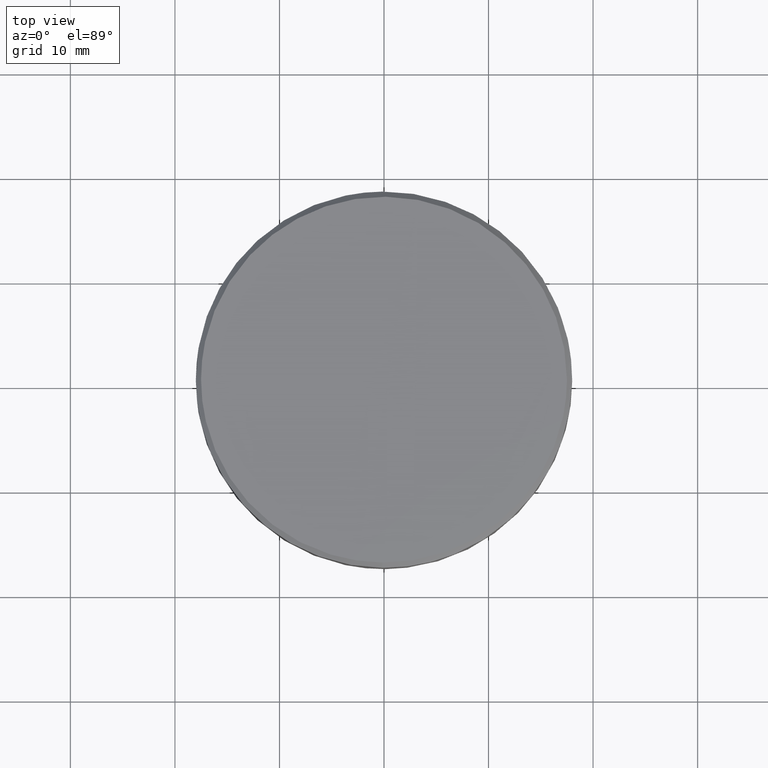
[diagram: clean part render]
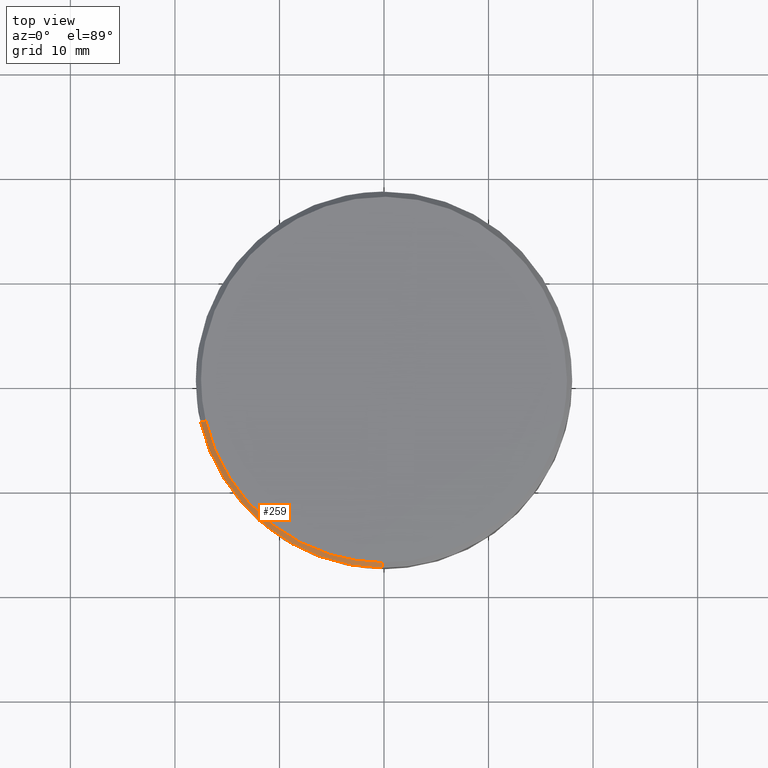
[diagram: same view with one face highlighted and labeled with its STEP entity id]
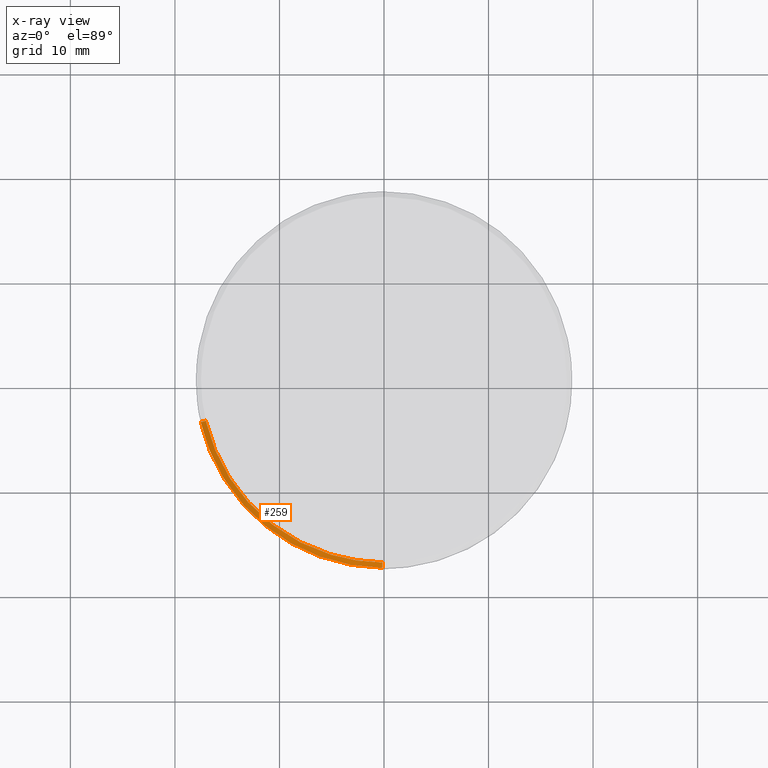
[diagram: x-ray of the same camera — body ghosted, the highlighted face saturated]
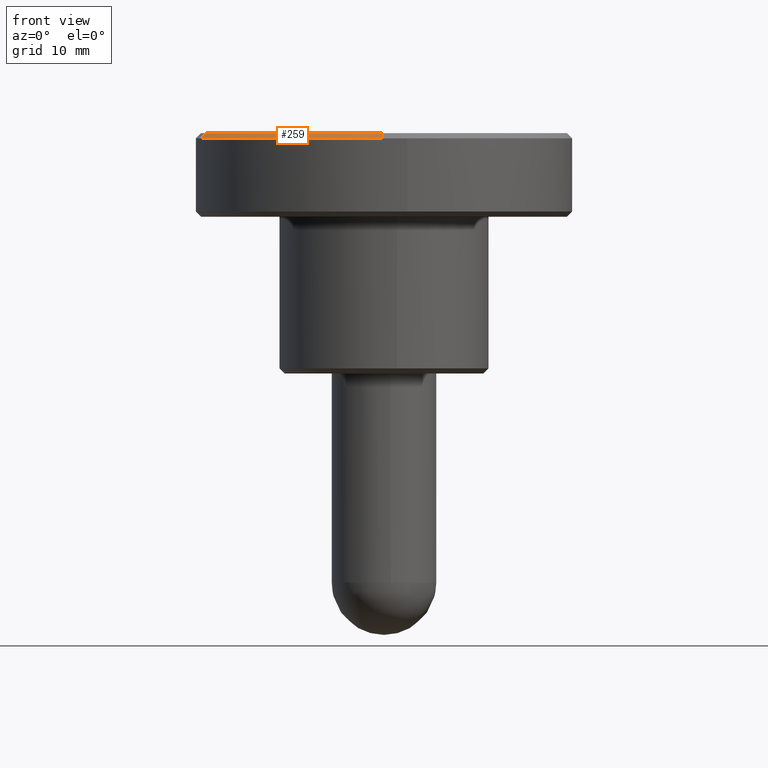
[diagram: same view with one face highlighted and labeled with its STEP entity id]
A machine part, top view. The second image highlights one B-rep face of the part: STEP entity #259.
The next image is the same camera in x-ray: the body ghosted, the highlighted face saturated — about 0% of this face is hidden behind the body in this view.
A second angle (front view) of the same face is appended — the face is thin or edge-on in the first view.
In plain terms, the highlighted face is a freeform B-spline surface patch.
Its self-contained STEP definition (entity closure, byte-faithful):
#70=CARTESIAN_POINT('',(-17.535926757211040,-4.060944811969350,22.499999999996358));
#71=VERTEX_POINT('',#70);
#87=CARTESIAN_POINT('',(-17.048817680619980,-3.948140789431212,22.999999999994571));
#88=VERTEX_POINT('',#87);
#89=CARTESIAN_POINT('',(-17.048817680619980,-3.948140789431212,22.999999999994571));
#90=CARTESIAN_POINT('',(-17.535926757211040,-4.060944811969350,22.499999999996358));
#91=QUASI_UNIFORM_CURVE('',1,(#89,#90),.UNSPECIFIED.,.F.,.U.);
#92=EDGE_CURVE('',#88,#71,#91,.T.);
#126=CARTESIAN_POINT('',(-0.152714371268625,-17.499333653629002,22.999999999993609));
#127=VERTEX_POINT('',#126);
#143=CARTESIAN_POINT('',(-0.157077639032646,-17.999314615162959,22.499999999991580));
#144=VERTEX_POINT('',#143);
#145=CARTESIAN_POINT('',(-0.152714371268625,-17.499333653629002,22.999999999993609));
#146=CARTESIAN_POINT('',(-0.157077639032646,-17.999314615162959,22.499999999991580));
#147=QUASI_UNIFORM_CURVE('',1,(#145,#146),.UNSPECIFIED.,.F.,.U.);
#148=EDGE_CURVE('',#127,#144,#147,.T.);
#215=CARTESIAN_POINT('',(-0.152605289527814,-17.486834129584739,23.012499999999999));
#216=CARTESIAN_POINT('',(-13.928556243240688,-17.366613226919718,23.012500000000003));
#217=CARTESIAN_POINT('',(-17.036639953710658,-3.945320688819989,23.012499999999999));
#218=CARTESIAN_POINT('',(-0.157189447706803,-18.012126627294339,22.487187500000001));
#219=CARTESIAN_POINT('',(-14.346960514950569,-17.888294371209376,22.487187500000001));
#220=CARTESIAN_POINT('',(-17.548408927302248,-4.063835415015588,22.487187499999994));
#228=(BOUNDED_SURFACE()B_SPLINE_SURFACE(2,1,((#215,#218),(#216,#219),(#217,#220)),.UNSPECIFIED.,.F.,.F.,.U.)B_SPLINE_SURFACE_WITH_KNOTS((3,3),(2,2),(0.0,24.959837908595269),(0.0,1.0),.UNSPECIFIED.)GEOMETRIC_REPRESENTATION_ITEM()RATIONAL_B_SPLINE_SURFACE(((1.0,1.0),(0.753969696196700,0.753969696196700),(0.921270302782944,0.921270302782944)))REPRESENTATION_ITEM('')SURFACE());
#229=CARTESIAN_POINT('',(-0.157077639032646,-17.999314615162955,22.499999999991584));
#230=CARTESIAN_POINT('',(-14.336755532685002,-17.875570440763649,22.499999999999996));
#231=CARTESIAN_POINT('',(-17.535926757211040,-4.060944811969351,22.499999999996366));
#239=(BOUNDED_CURVE()B_SPLINE_CURVE(2,(#229,#230,#231),.UNSPECIFIED.,.F.,.U.)B_SPLINE_CURVE_WITH_KNOTS((3,3),(0.751539894336198,0.961422971784034),.UNSPECIFIED.)CURVE()GEOMETRIC_REPRESENTATION_ITEM()RATIONAL_B_SPLINE_CURVE((0.996414028097605,0.753549905437455,0.923556557441853))REPRESENTATION_ITEM(''));
#240=EDGE_CURVE('',#144,#71,#239,.T.);
#241=ORIENTED_EDGE('',*,*,#240,.F.);
#242=ORIENTED_EDGE('',*,*,#148,.F.);
#243=CARTESIAN_POINT('',(-17.048817680619990,-3.948140789431212,22.999999999994568));
#244=CARTESIAN_POINT('',(-13.938512323412096,-17.379026817430098,23.000000000000007));
#245=CARTESIAN_POINT('',(-0.152714371268625,-17.499333653629005,22.999999999993609));
#253=(BOUNDED_CURVE()B_SPLINE_CURVE(2,(#243,#244,#245),.UNSPECIFIED.,.F.,.U.)B_SPLINE_CURVE_WITH_KNOTS((3,3),(0.538577028216275,0.748460105664067),.UNSPECIFIED.)CURVE()GEOMETRIC_REPRESENTATION_ITEM()RATIONAL_B_SPLINE_CURVE((0.923556557441352,0.753549905437598,0.996414028098217))REPRESENTATION_ITEM(''));
#254=EDGE_CURVE('',#88,#127,#253,.T.);
#255=ORIENTED_EDGE('',*,*,#254,.F.);
#256=ORIENTED_EDGE('',*,*,#92,.T.);
#257=EDGE_LOOP('',(#241,#242,#255,#256));
#258=FACE_OUTER_BOUND('',#257,.T.);
#259=ADVANCED_FACE('',(#258),#228,.T.);